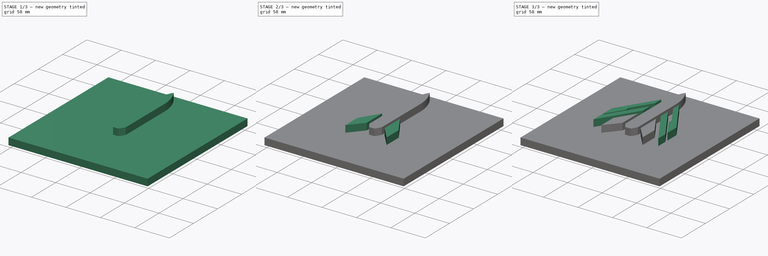
[diagram: build sequence overview — one tinted view per stage of 3, left to right]
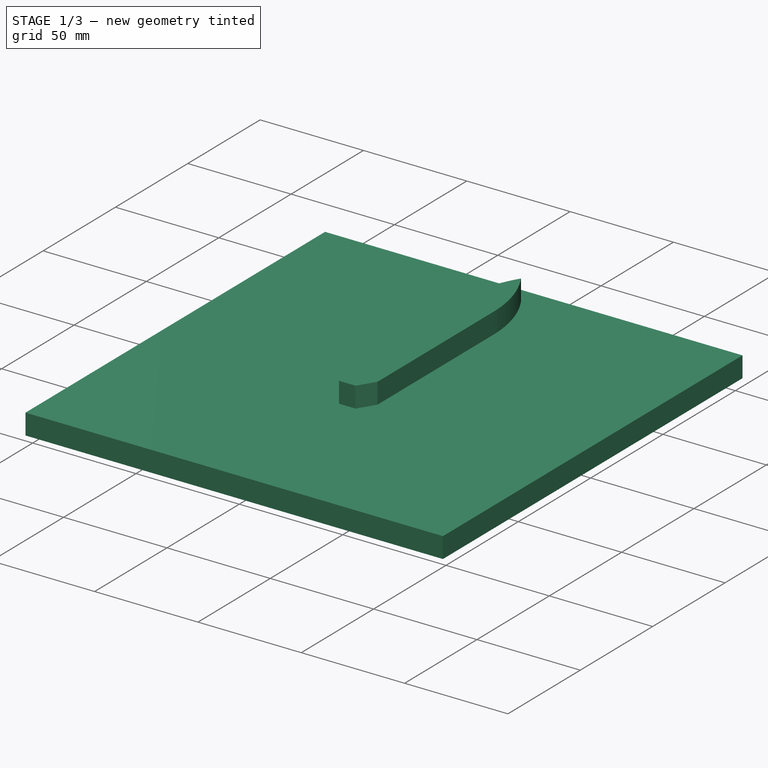
[diagram: stage 1 of 3 — iso view after this stage's code; geometry added in this stage tinted green]
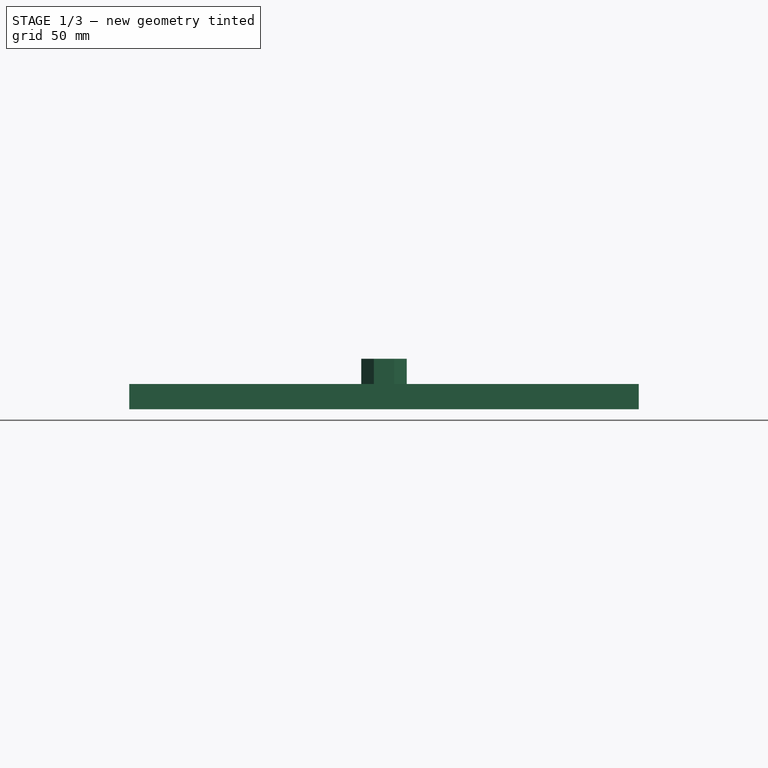
[diagram: stage 1 of 3 — front view after this stage's code; geometry added in this stage tinted green]
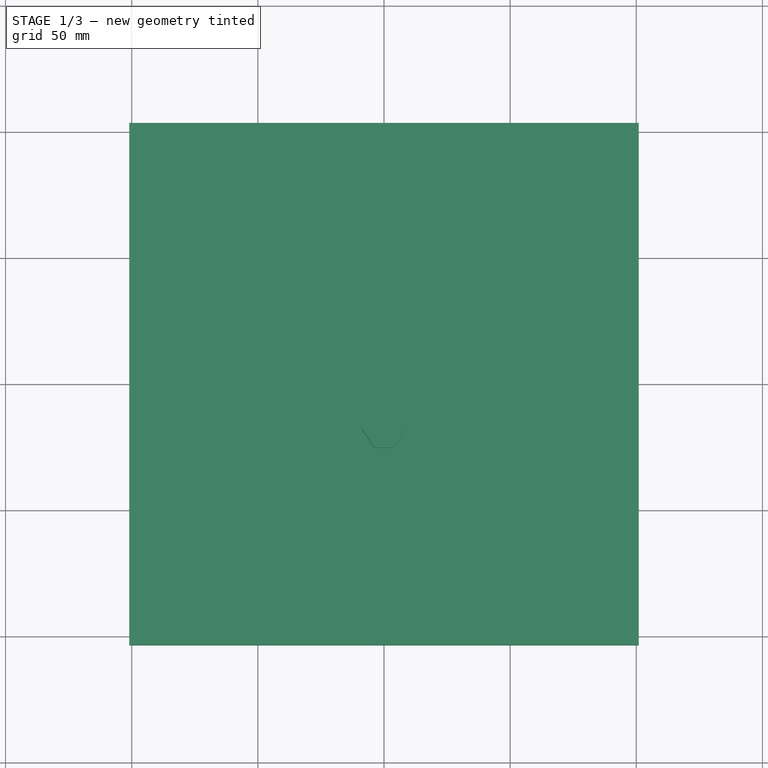
[diagram: stage 1 of 3 — top view after this stage's code; geometry added in this stage tinted green]
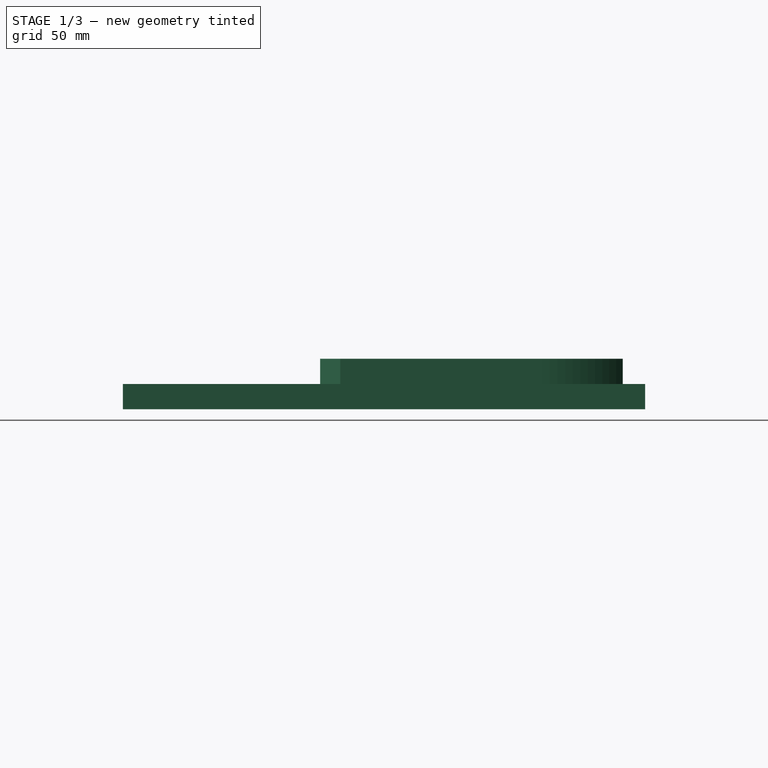
[diagram: stage 1 of 3 — right view after this stage's code; geometry added in this stage tinted green]
FCSTD DOCUMENT  (FreeCAD 1.0R39319 (Git))
Label: logo
License: All rights reserved
objects: Sketcher::SketchObject×5, PartDesign::Pad×5, PartDesign::Body×1
note: 26 computed .brp shape members not serialized (recipe doc carries the construction recipe); baked Part::Feature solids carry a one-line shape summary decoded from their .brp

FEATURE [Sketcher::SketchObject] Sketch
  ArcFitTolerance = 1e-06
  AttachmentSupport = -> [XY_Plane]
  FullyConstrained = false
  MakeInternals = false
  MapMode = 5
  sketch-geometry (9):
    g0: LineSegment StartX=-9 StartY=62.6571 StartZ=0 EndX=-9 EndY=-17.3429 EndZ=0
    g1: LineSegment StartX=9 StartY=-17.3429 StartZ=0 EndX=9 EndY=62.6571 EndZ=0
    g2: LineSegment StartX=-9 StartY=-17.3429 StartZ=0 EndX=-4 EndY=-25.3429 EndZ=0
    g3: LineSegment StartX=-4 StartY=-25.3429 StartZ=0 EndX=4 EndY=-25.3429 EndZ=0
    g4: LineSegment StartX=4 StartY=-25.3429 StartZ=0 EndX=9 EndY=-17.3429 EndZ=0
    g5: GeomPoint X=0 Y=94.6571 Z=0
    g6: ArcOfCircle CenterX=52.3889 CenterY=62.6571 CenterZ=0 NormalX=0 NormalY=0 NormalZ=1 AngleXU=0 Radius=61.3889 StartAngle=2.59326 EndAngle=3.14159
    g7: LineSegment [constr] StartX=-9 StartY=-17.3429 StartZ=0 EndX=9 EndY=-17.3429 EndZ=0
    g8: ArcOfCircle CenterX=-52.3889 CenterY=62.6571 CenterZ=0 NormalX=0 NormalY=0 NormalZ=1 AngleXU=0 Radius=61.3889 StartAngle=0 EndAngle=0.548335
  constraints (21):
    c: Vertical(g0)
    c: Parallel(g0,g1)
    c: DistanceY(g0,g0) = 80
    c: DistanceX(g0,g1) = 18
    c: Symmetric(g0,g1,g-2)
    c: Coincident(g0,g2)
    c: Coincident(g2,g3)
    c: Coincident(g3,g4)
    c: DistanceY(g2,g2) = 8
    c: DistanceX(g2,g3) = 8
    c: Symmetric(g2,g3,g-2)
    c: PointOnObject(g5,g-2)
    c: DistanceY(g1,g5) = 32
    c: Coincident(g6,g5)
    c: Tangent(g6,g0) = -1.5708
    c: Coincident(g1,g4)
    c: Coincident(g7,g0)
    c: Coincident(g7,g1)
    c: Horizontal(g7)
    c: Coincident(g8,g5)
    c: Tangent(g8,g1) = -1.5708
FEATURE [PartDesign::Pad] Pad  label="main_body"
  Direction = (0,0,1)
  Length = 10
  Length2 = 10
  Profile = -> Sketch
  ReferenceAxis = -> Sketch [N_Axis]
  Refine = true
  Suppressed = false
  Type = 0
FEATURE [Sketcher::SketchObject] Sketch001
  ArcFitTolerance = 1e-06
  AttachmentSupport = -> [XY_Plane]
  ExternalGeometry = -> [Pad]
  FullyConstrained = true
  MakeInternals = false
  MapMode = 5
  sketch-geometry (9):
    g0: LineSegment StartX=13 StartY=14.6571 StartZ=0 EndX=13 EndY=-17.3429 EndZ=0
    g1: LineSegment StartX=13 StartY=-17.3429 StartZ=0 EndX=30 EndY=-37.3429 EndZ=0
    g2: LineSegment StartX=30 StartY=-37.3429 StartZ=0 EndX=30 EndY=-12.3429 EndZ=0
    g3: LineSegment StartX=30 StartY=-12.3429 StartZ=0 EndX=13 EndY=14.6571 EndZ=0
    g4: LineSegment [constr] StartX=9 StartY=-17.3429 StartZ=0 EndX=13 EndY=-17.3429 EndZ=0
    g5: LineSegment StartX=-13 StartY=14.6571 StartZ=0 EndX=-13 EndY=-17.3429 EndZ=0
    g6: LineSegment StartX=-13 StartY=-17.3429 StartZ=0 EndX=-30 EndY=-37.3429 EndZ=0
    g7: LineSegment StartX=-30 StartY=-37.3429 StartZ=0 EndX=-30 EndY=-12.3429 EndZ=0
    g8: LineSegment StartX=-30 StartY=-12.3429 StartZ=0 EndX=-13 EndY=14.6571 EndZ=0
  constraints (22):
    c: Vertical(g0)
    c: Coincident(g0,g1)
    c: Coincident(g1,g2)
    c: Coincident(g2,g3)
    c: Coincident(g3,g0)
    c: Coincident(g4,g-3)
    c: Coincident(g4,g0)
    c: Horizontal(g4)
    c: DistanceX(g4,g0) = 4
    c: DistanceX(g0,g2) = 17
    c: DistanceY(g0,g0) = 32
    c: DistanceY(g1,g2) = 25
    c: DistanceY(g1,g0) = 20
    c: Coincident(g5,g6)
    c: Coincident(g6,g7)
    c: Vertical(g7)
    c: Coincident(g7,g8)
    c: Coincident(g8,g5)
    c: Symmetric(g5,g0,g-2)
    c: Symmetric(g5,g0,g-2)
    c: Symmetric(g6,g1,g-2)
    c: Symmetric(g7,g2,g-2)
FEATURE [Sketcher::SketchObject] Sketch002
  ArcFitTolerance = 1e-06
  AttachmentSupport = -> [XY_Plane]
  FullyConstrained = false
  MakeInternals = false
  MapMode = 5
  sketch-geometry (7):
    g0: LineSegment StartX=-100.996 StartY=103.512 StartZ=0 EndX=-100.996 EndY=-103.512 EndZ=0
    g1: LineSegment StartX=-100.996 StartY=-103.512 StartZ=0 EndX=100.996 EndY=-103.512 EndZ=0
    g2: LineSegment StartX=100.996 StartY=-103.512 StartZ=0 EndX=100.996 EndY=103.512 EndZ=0
    g3: LineSegment StartX=100.996 StartY=103.512 StartZ=0 EndX=-100.996 EndY=103.512 EndZ=0
    g4: LineSegment [constr] StartX=-100.996 StartY=103.512 StartZ=0 EndX=100.996 EndY=-103.512 EndZ=0
    g5: LineSegment [constr] StartX=100.996 StartY=103.512 StartZ=0 EndX=-100.996 EndY=-103.512 EndZ=0
    g6: GeomPoint [constr] X=0 Y=0 Z=0
  constraints (15):
    c: Coincident(g0,g1)
    c: Coincident(g1,g2)
    c: Coincident(g2,g3)
    c: Coincident(g3,g0)
    c: Vertical(g0)
    c: Vertical(g2)
    c: Horizontal(g1)
    c: Horizontal(g3)
    c: Coincident(g4,g0)
    c: Coincident(g4,g1)
    c: Coincident(g5,g2)
    c: Coincident(g5,g0)
    c: PointOnObject(g6,g5)
    c: PointOnObject(g6,g4)
    c: Coincident(g6,g-1)
FEATURE [PartDesign::Pad] Pad001  label="support"
  BaseFeature = -> Pad
  Direction = (0,0,1)
  Length = 10
  Length2 = 10
  Profile = -> Sketch002
  ReferenceAxis = -> Sketch002 [N_Axis]
  Refine = true
  Reversed = true
  Suppressed = false
  Type = 0
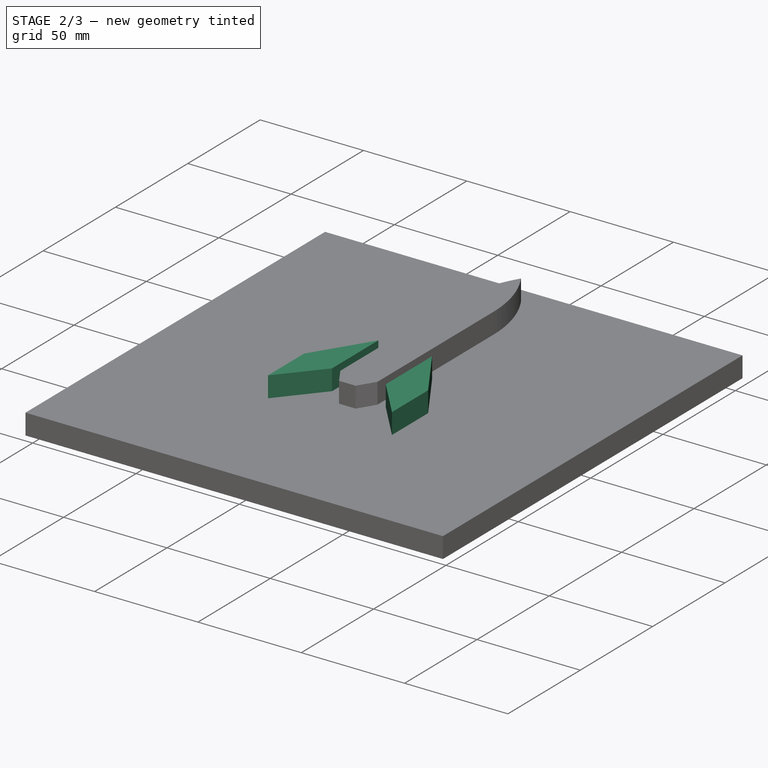
[diagram: stage 2 of 3 — iso view after this stage's code; geometry added in this stage tinted green]
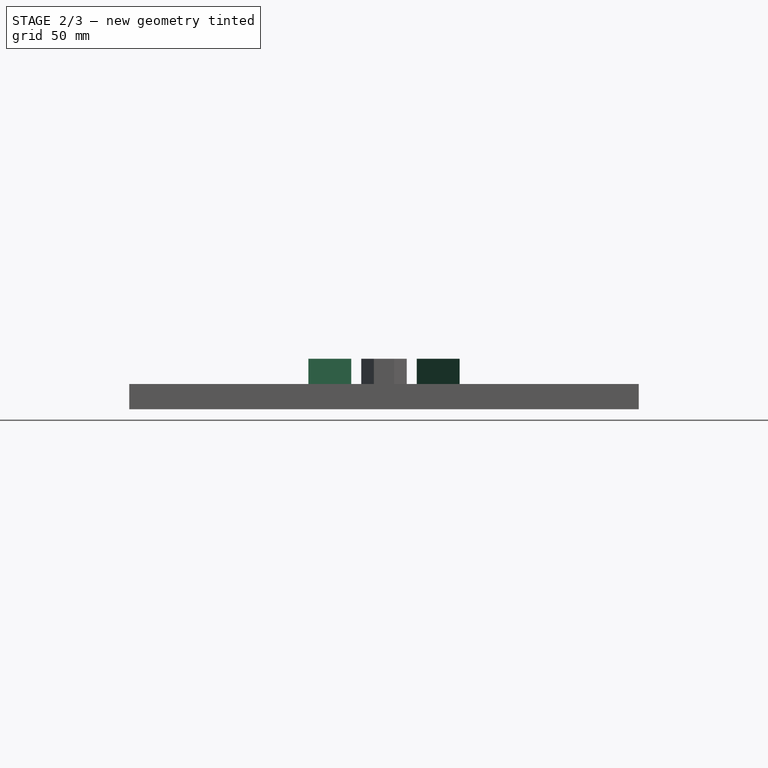
[diagram: stage 2 of 3 — front view after this stage's code; geometry added in this stage tinted green]
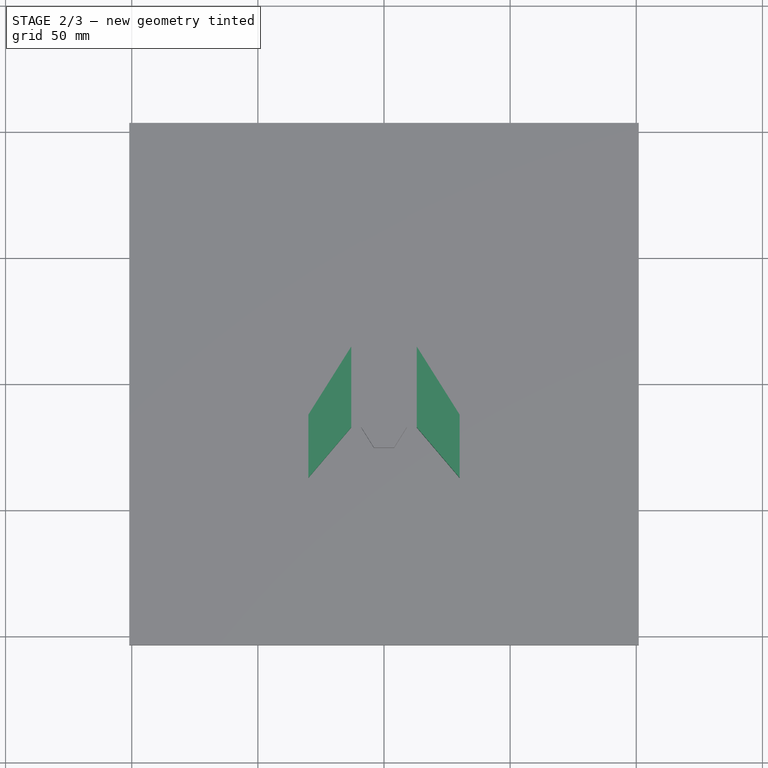
[diagram: stage 2 of 3 — top view after this stage's code; geometry added in this stage tinted green]
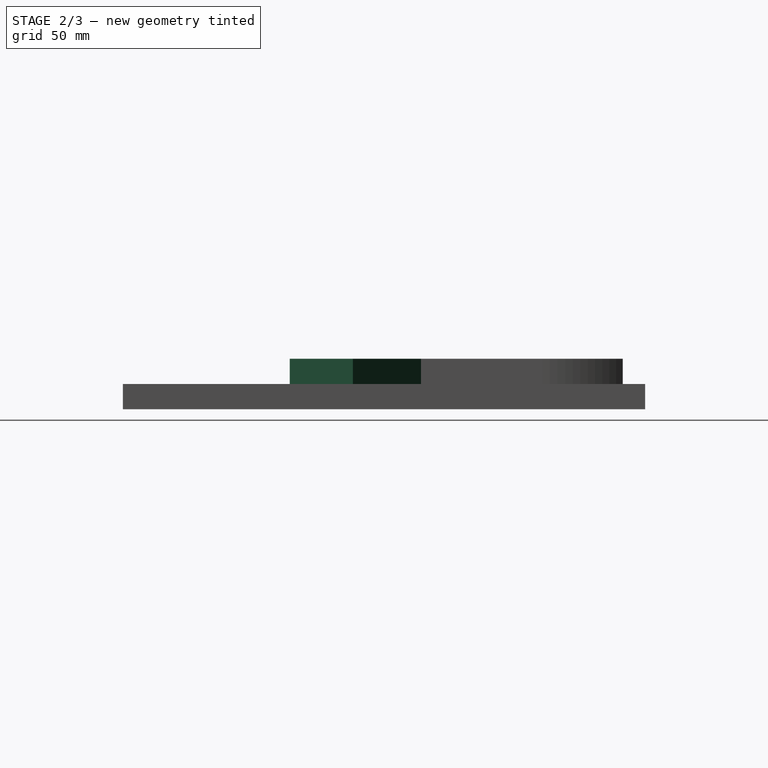
[diagram: stage 2 of 3 — right view after this stage's code; geometry added in this stage tinted green]
FEATURE [PartDesign::Pad] Pad002  label="lower_fins"
  BaseFeature = -> Pad001
  Direction = (0,0,1)
  Length = 10
  Length2 = 10
  Profile = -> Sketch001
  ReferenceAxis = -> Sketch001 [N_Axis]
  Refine = true
  Suppressed = false
  Type = 0
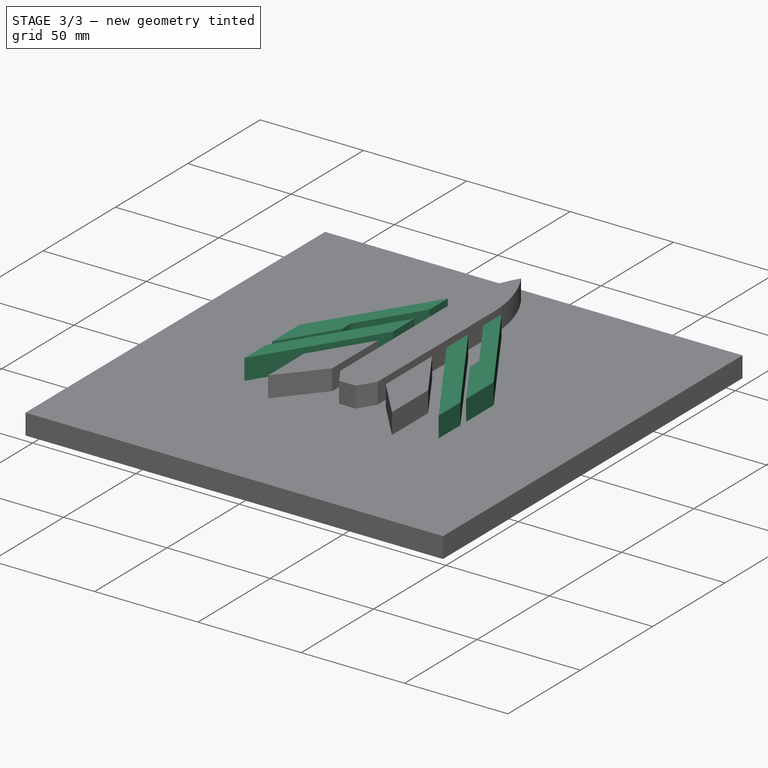
[diagram: stage 3 of 3 — iso view after this stage's code; geometry added in this stage tinted green]
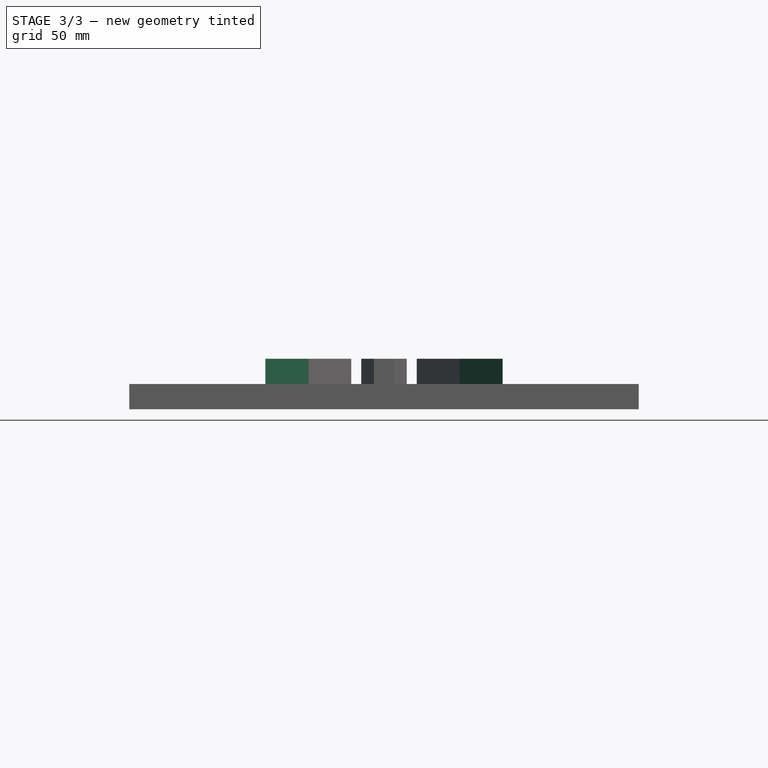
[diagram: stage 3 of 3 — front view after this stage's code; geometry added in this stage tinted green]
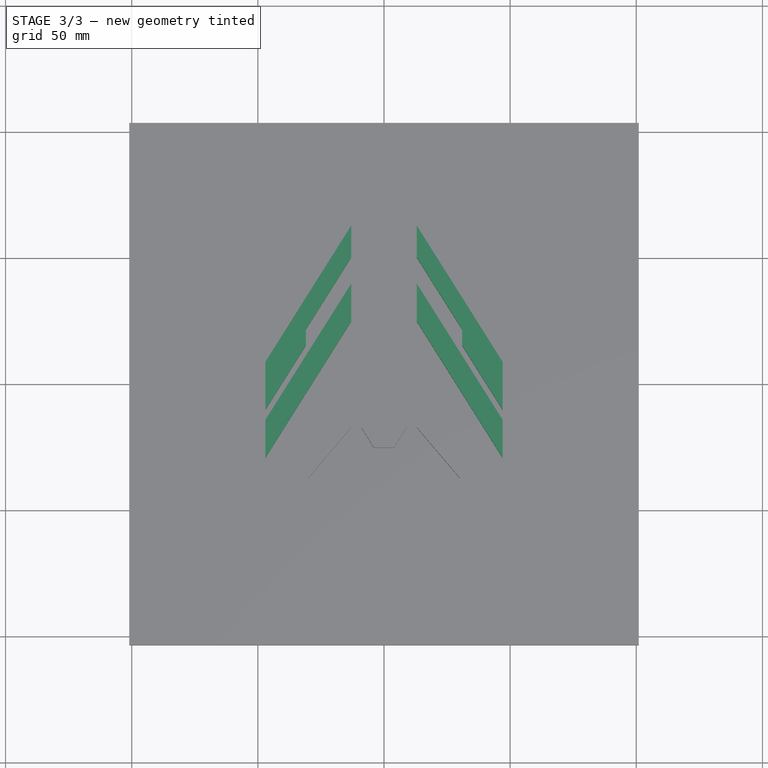
[diagram: stage 3 of 3 — top view after this stage's code; geometry added in this stage tinted green]
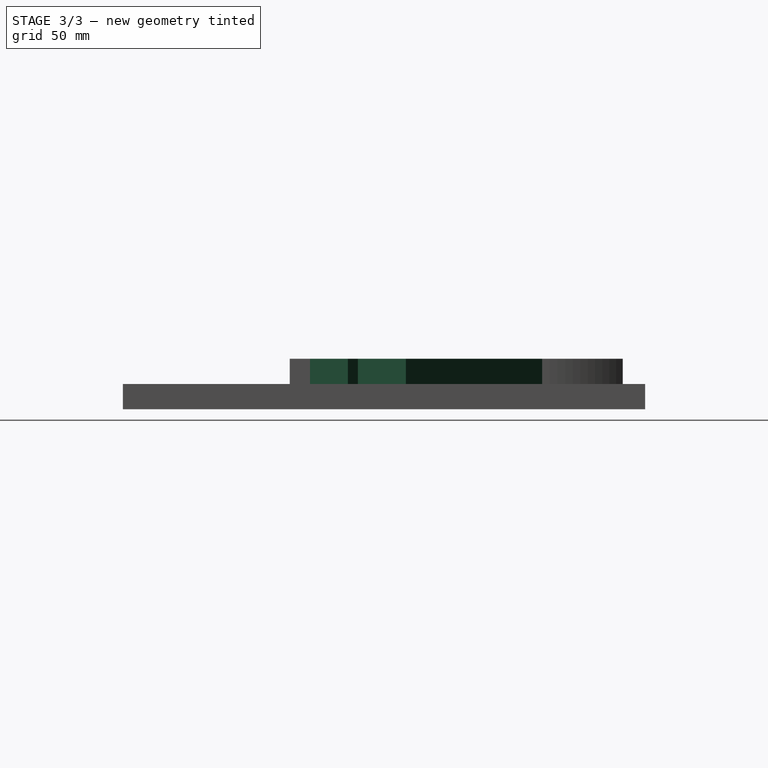
[diagram: stage 3 of 3 — right view after this stage's code; geometry added in this stage tinted green]
FEATURE [Sketcher::SketchObject] Sketch003
  ArcFitTolerance = 1e-06
  AttachmentSupport = -> [XY_Plane]
  ExternalGeometry = -> [Pad002]
  FullyConstrained = true
  MakeInternals = false
  MapMode = 5
  sketch-geometry (8):
    g0: LineSegment StartX=13 StartY=24.6571 StartZ=0 EndX=13 EndY=39.6571 EndZ=0
    g1: LineSegment StartX=13 StartY=39.6571 StartZ=0 EndX=47 EndY=-14.3429 EndZ=0
    g2: LineSegment StartX=47 StartY=-14.3429 StartZ=0 EndX=47 EndY=-29.3429 EndZ=0
    g3: LineSegment StartX=47 StartY=-29.3429 StartZ=0 EndX=13 EndY=24.6571 EndZ=0
    g4: LineSegment StartX=-13 StartY=39.6571 StartZ=0 EndX=-13 EndY=24.6571 EndZ=0
    g5: LineSegment StartX=-13 StartY=24.6571 StartZ=0 EndX=-47 EndY=-29.3429 EndZ=0
    g6: LineSegment StartX=-47 StartY=-29.3429 StartZ=0 EndX=-47 EndY=-14.3429 EndZ=0
    g7: LineSegment StartX=-47 StartY=-14.3429 StartZ=0 EndX=-13 EndY=39.6571 EndZ=0
  constraints (20):
    c: Coincident(g0,g1)
    c: Coincident(g1,g2)
    c: Coincident(g2,g3)
    c: Coincident(g3,g0)
    c: Parallel(g0,g2)
    c: Parallel(g3,g1)
    c: Vertical(g0)
    c: Parallel(g-8,g3)
    c: DistanceX(g-3,g0) = 4
    c: DistanceX(g0,g1) = 34
    c: DistanceY(g0,g0) = 15
    c: DistanceY(g-8,g0) = 10
    c: Coincident(g4,g5)
    c: Coincident(g5,g6)
    c: Coincident(g6,g7)
    c: Coincident(g7,g4)
    c: Symmetric(g0,g4,g-2)
    c: Symmetric(g4,g0,g-2)
    c: Symmetric(g5,g2,g-2)
    c: Symmetric(g6,g1,g-2)
FEATURE [PartDesign::Pad] Pad003
  BaseFeature = -> Pad002
  Direction = (0,0,1)
  Length = 10
  Length2 = 10
  Profile = -> Sketch003
  ReferenceAxis = -> Sketch003 [N_Axis]
  Refine = true
  Suppressed = false
  Type = 0
FEATURE [Sketcher::SketchObject] Sketch004
  ArcFitTolerance = 1e-06
  AttachmentSupport = -> [XY_Plane]
  ExternalGeometry = -> [Pad003]
  FullyConstrained = false
  MakeInternals = false
  MapMode = 5
  sketch-geometry (14):
    g0: LineSegment StartX=13 StartY=49.9971 StartZ=0 EndX=13 EndY=62.6571 EndZ=0
    g1: LineSegment StartX=13 StartY=62.6571 StartZ=0 EndX=47 EndY=8.65715 EndZ=0
    g2: LineSegment StartX=47 StartY=8.65715 StartZ=0 EndX=47 EndY=-10.3429 EndZ=0
    g3: LineSegment StartX=47 StartY=-10.3429 StartZ=0 EndX=30.9832 EndY=15.0956 EndZ=0
    g4: LineSegment StartX=30.9832 StartY=15.0956 StartZ=0 EndX=30.9832 EndY=21.4356 EndZ=0
    g5: LineSegment StartX=30.9832 StartY=21.4356 StartZ=0 EndX=13 EndY=49.9971 EndZ=0
    g6: LineSegment [constr] StartX=47 StartY=-14.3429 StartZ=0 EndX=47 EndY=-10.3429 EndZ=0
    g7: LineSegment StartX=-13 StartY=62.6571 StartZ=0 EndX=-13 EndY=49.9971 EndZ=0
    g8: LineSegment StartX=-13 StartY=49.9971 StartZ=0 EndX=-30.9832 EndY=21.4356 EndZ=0
    g9: LineSegment StartX=-30.9832 StartY=21.4356 StartZ=0 EndX=-30.9832 EndY=15.0956 EndZ=0
    g10: LineSegment StartX=-30.9832 StartY=15.0956 StartZ=0 EndX=-47 EndY=-10.3429 EndZ=0
    g11: LineSegment StartX=-47 StartY=-10.3429 StartZ=0 EndX=-47 EndY=8.65715 EndZ=0
    g12: LineSegment StartX=-47 StartY=8.65715 StartZ=0 EndX=-13 EndY=62.6571 EndZ=0
    g13: LineSegment [constr] StartX=9 StartY=62.6571 StartZ=0 EndX=13 EndY=62.6571 EndZ=0
  constraints (33):
    c: Coincident(g0,g1)
    c: Coincident(g1,g2)
    c: Coincident(g2,g3)
    c: Coincident(g3,g4)
    c: Coincident(g4,g5)
    c: Coincident(g5,g0)
    c: Vertical(g0)
    c: Parallel(g-4,g3)
    c: DistanceX(g-5,g0) = 4
    c: Parallel(g0,g2)
    c: Coincident(g6,g-4)
    c: Coincident(g6,g2)
    c: Vertical(g6)
    c: Parallel(g5,g1)
    c: DistanceY(g6,g2) = 4
    c: Parallel(g3,g1)
    c: Coincident(g7,g8)
    c: Coincident(g8,g9)
    c: Coincident(g9,g10)
    c: Coincident(g10,g11)
    c: Coincident(g11,g12)
    c: Coincident(g12,g7)
    c: Symmetric(g7,g0,g-2)
    c: Symmetric(g4,g8,g-2)
    c: Symmetric(g10,g2,g-2)
    c: Symmetric(g1,g11,g-2)
    c: Vertical(g4)
    c: Symmetric(g7,g0,g-2)
    c: Symmetric(g3,g9,g-2)
    c: Coincident(g13,g-5)
    c: Coincident(g13,g0)
    c: Horizontal(g13)
    c: DistanceY(g0,g0) = 12.66
FEATURE [PartDesign::Pad] Pad004
  BaseFeature = -> Pad003
  Direction = (0,0,1)
  Length = 10
  Length2 = 10
  Profile = -> Sketch004
  ReferenceAxis = -> Sketch004 [N_Axis]
  Refine = true
  Suppressed = false
  Type = 0
FEATURE [PartDesign::Body] Body
  AllowCompound = false
  Group = -> [Sketch,Pad,Sketch001,Sketch002,Pad001,Pad002,Sketch003,Pad003,Sketch004,Pad004]
  Origin = -> Origin
  Tip = -> Pad004
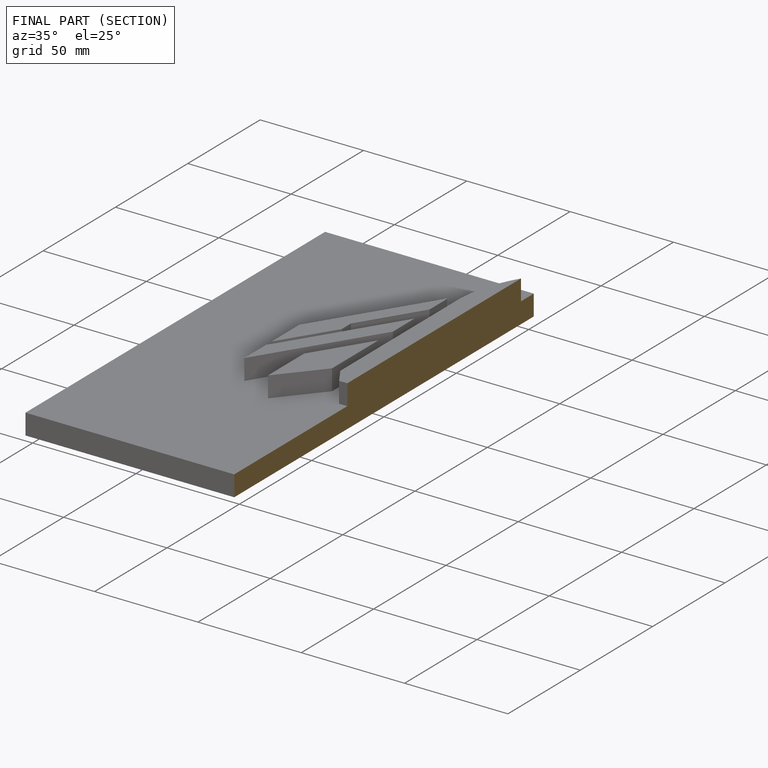
[diagram: finished part — half-section view (interior)]
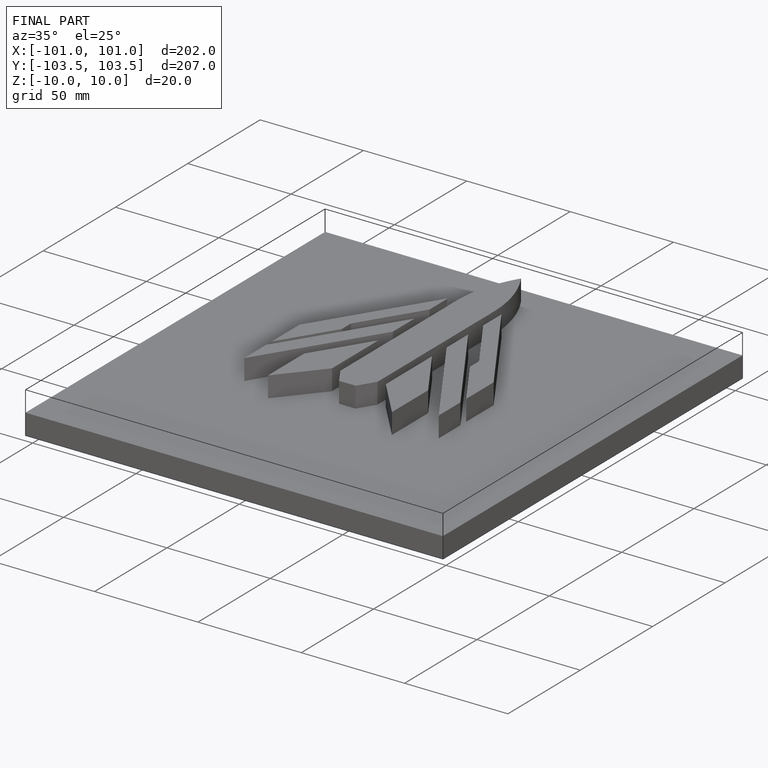
[diagram: finished part — iso view with bounding-box wireframe]
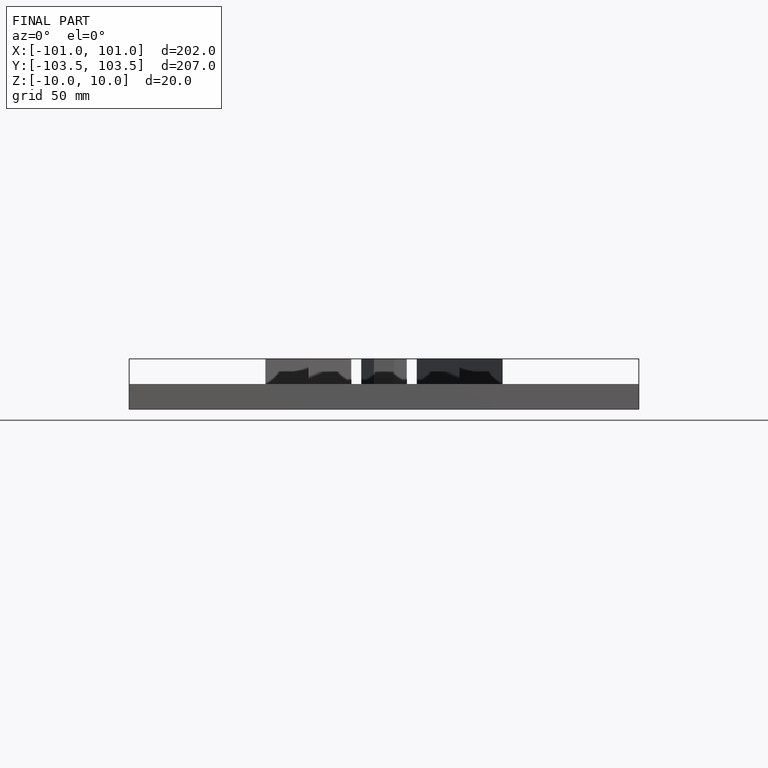
[diagram: finished part — front view with bounding-box wireframe]
